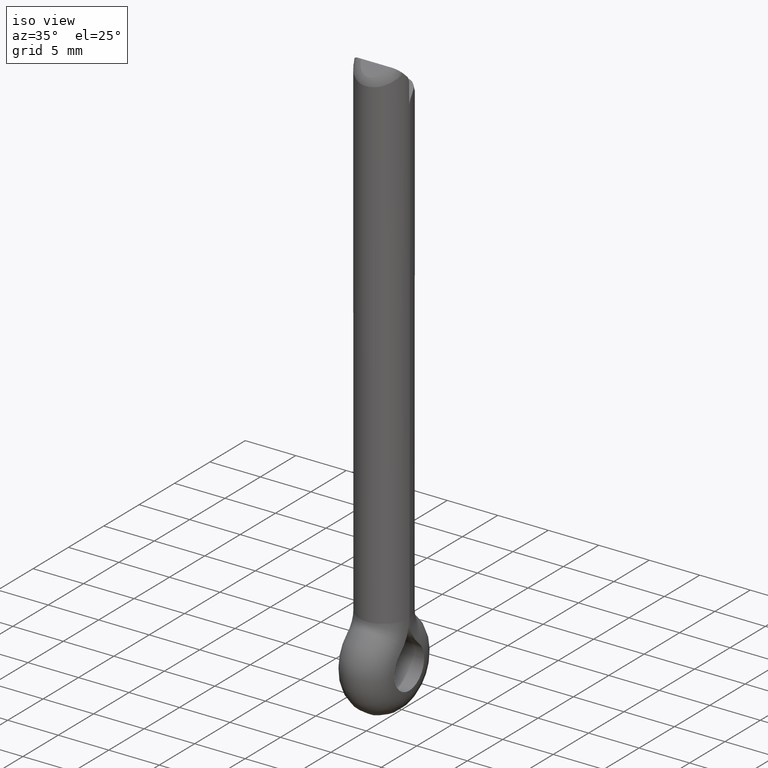
[diagram: clean part render]
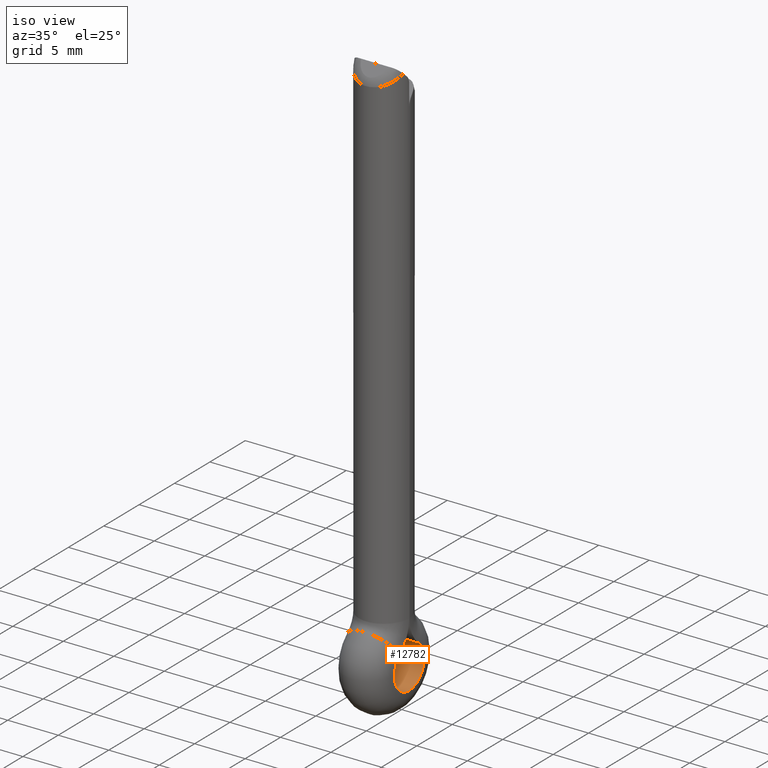
[diagram: same view with one face highlighted and labeled with its STEP entity id]
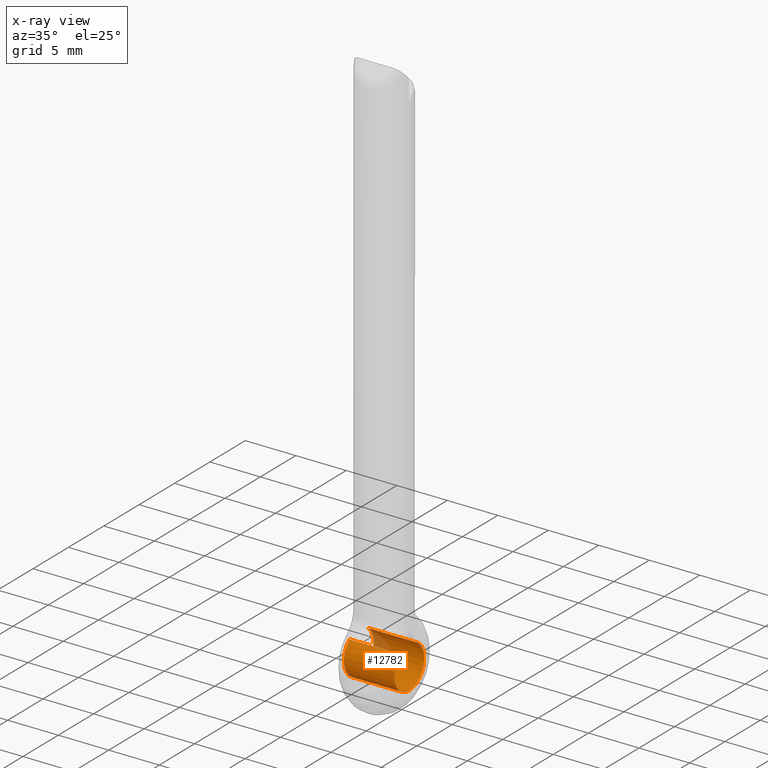
[diagram: x-ray of the same camera — body ghosted, the highlighted face saturated]
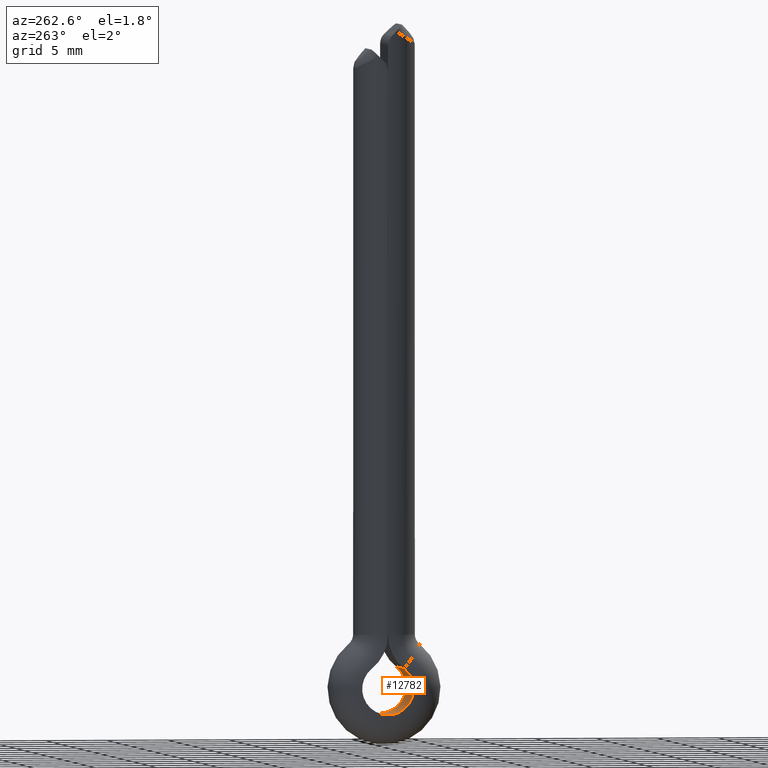
[diagram: same view with one face highlighted and labeled with its STEP entity id]
A machine part, iso view. The second image highlights one B-rep face of the part: STEP entity #12782.
The next image is the same camera in x-ray: the body ghosted, the highlighted face saturated — about 5% of this face is hidden behind the body in this view.
A second angle (auxiliary view) of the same face is appended — the face is thin or edge-on in the first view.
In plain terms, the highlighted cylindrical surface (edge-blend (fillet) strip) has radius 2.11 mm, axis along (-1, -0, -0).
Its self-contained STEP definition (entity closure, byte-faithful):
#115 = VECTOR ( 'NONE', #15811, 1000.000000000000000 ) ;
#466 = CARTESIAN_POINT ( 'NONE',  ( 2.499979999919999400, -2.500000000000000000, -51.86134691526156400 ) ) ;
#1004 = EDGE_LOOP ( 'NONE', ( #5387, #13387, #7225, #4795 ) ) ;
#1224 = VERTEX_POINT ( 'NONE', #10689 ) ;
#1546 = DIRECTION ( 'NONE',  ( -1.000000000000000000, -0.0000000000000000000, -0.0000000000000000000 ) ) ;
#2044 = AXIS2_PLACEMENT_3D ( 'NONE', #9518, #10855, #4405 ) ;
#2456 = VERTEX_POINT ( 'NONE', #5722 ) ;
#2738 = CIRCLE ( 'NONE', #12901, 2.109999999999993700 ) ;
#3369 = FACE_OUTER_BOUND ( 'NONE', #1004, .T. ) ;
#3914 = LINE ( 'NONE', #11039, #8121 ) ;
#3944 = CIRCLE ( 'NONE', #2044, 2.109999999999993700 ) ;
#4405 = DIRECTION ( 'NONE',  ( 0.0000000000000000000, 0.0000000000000000000, 1.000000000000000000 ) ) ;
#4795 = ORIENTED_EDGE ( 'NONE', *, *, #12696, .F. ) ;
#4972 = VERTEX_POINT ( 'NONE', #14066 ) ;
#5073 = EDGE_CURVE ( 'NONE', #1224, #2456, #13594, .T. ) ;
#5387 = ORIENTED_EDGE ( 'NONE', *, *, #7121, .F. ) ;
#5662 = CARTESIAN_POINT ( 'NONE',  ( -2.499979999919999400, -3.818749999999974800, -50.21422869318397600 ) ) ;
#5722 = CARTESIAN_POINT ( 'NONE',  ( 2.499979999919999400, -3.818749999999974800, -50.21422869318397600 ) ) ;
#6751 = DIRECTION ( 'NONE',  ( -1.000000000000000000, -0.0000000000000000000, -0.0000000000000000000 ) ) ;
#7121 = EDGE_CURVE ( 'NONE', #4972, #11365, #3914, .T. ) ;
#7225 = ORIENTED_EDGE ( 'NONE', *, *, #5073, .T. ) ;
#8033 = DIRECTION ( 'NONE',  ( 0.0000000000000000000, 0.0000000000000000000, 1.000000000000000000 ) ) ;
#8121 = VECTOR ( 'NONE', #15013, 1000.000000000000000 ) ;
#9518 = CARTESIAN_POINT ( 'NONE',  ( -2.499979999919999400, -2.500000000000000000, -51.86134691526156400 ) ) ;
#10622 = DIRECTION ( 'NONE',  ( 0.0000000000000000000, 0.0000000000000000000, 1.000000000000000000 ) ) ;
#10689 = CARTESIAN_POINT ( 'NONE',  ( -2.499979999919999400, -3.818749999999974800, -50.21422869318397600 ) ) ;
#10855 = DIRECTION ( 'NONE',  ( -1.000000000000000000, -0.0000000000000000000, -0.0000000000000000000 ) ) ;
#11039 = CARTESIAN_POINT ( 'NONE',  ( -2.499979999919999400, -1.181250000000001700, -50.21422869318399100 ) ) ;
#11365 = VERTEX_POINT ( 'NONE', #11627 ) ;
#11627 = CARTESIAN_POINT ( 'NONE',  ( 2.499979999919999400, -1.181250000000001700, -50.21422869318399100 ) ) ;
#12125 = AXIS2_PLACEMENT_3D ( 'NONE', #14424, #6751, #10622 ) ;
#12696 = EDGE_CURVE ( 'NONE', #11365, #2456, #2738, .T. ) ;
#12782 = ADVANCED_FACE ( 'NONE', ( #3369 ), #13597, .F. ) ;
#12801 = EDGE_CURVE ( 'NONE', #4972, #1224, #3944, .T. ) ;
#12901 = AXIS2_PLACEMENT_3D ( 'NONE', #466, #1546, #8033 ) ;
#13387 = ORIENTED_EDGE ( 'NONE', *, *, #12801, .T. ) ;
#13594 = LINE ( 'NONE', #5662, #115 ) ;
#13597 = CYLINDRICAL_SURFACE ( 'NONE', #12125, 2.109999999999993700 ) ;
#14066 = CARTESIAN_POINT ( 'NONE',  ( -2.499979999919999400, -1.181250000000001700, -50.21422869318399100 ) ) ;
#14424 = CARTESIAN_POINT ( 'NONE',  ( 0.0000000000000000000, -2.500000000000000000, -51.86134691526156400 ) ) ;
#15013 = DIRECTION ( 'NONE',  ( 1.000000000000000000, 0.0000000000000000000, 0.0000000000000000000 ) ) ;
#15811 = DIRECTION ( 'NONE',  ( 1.000000000000000000, 0.0000000000000000000, 0.0000000000000000000 ) ) ;